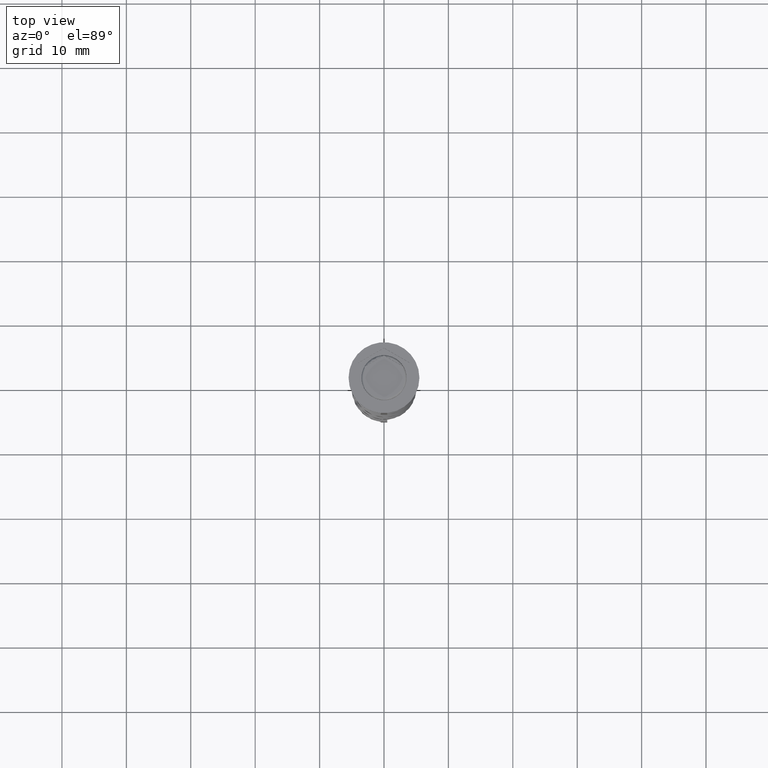
[diagram: clean part render]
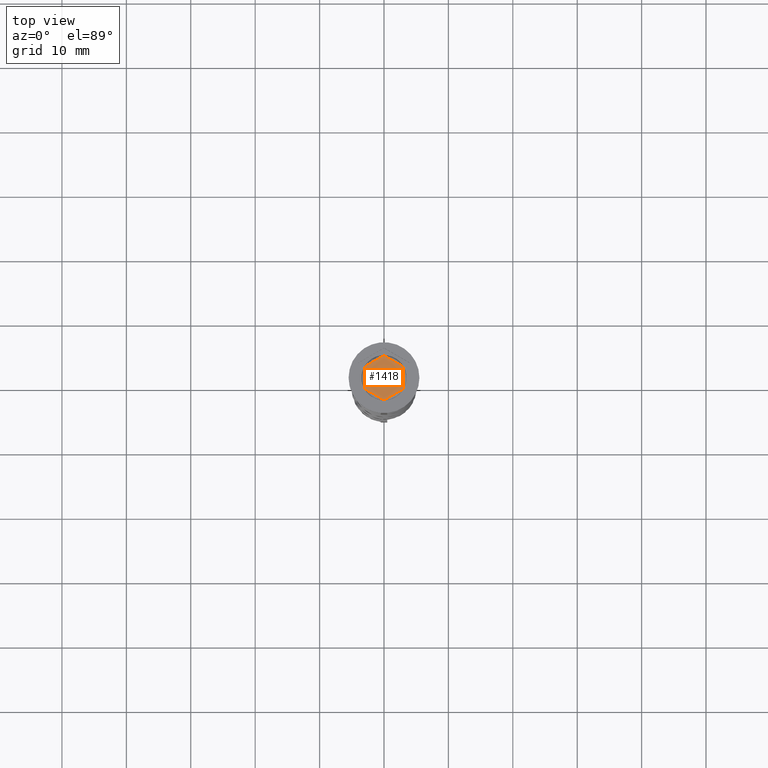
[diagram: same view with one face highlighted and labeled with its STEP entity id]
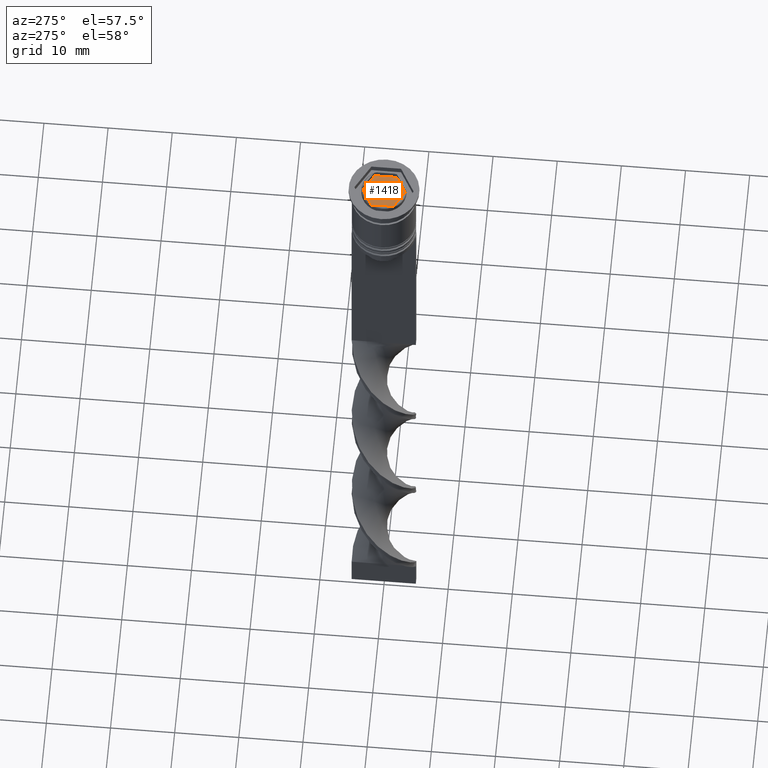
[diagram: same view with one face highlighted and labeled with its STEP entity id]
A machine part, top view. The second image highlights one B-rep face of the part: STEP entity #1418.
A second angle (auxiliary view) of the same face is appended — the face is thin or edge-on in the first view.
In plain terms, the highlighted planar face has unit normal (0, 0, 1).
Its self-contained STEP definition (entity closure, byte-faithful):
#138 = VECTOR ( 'NONE', #795, 999.9999999999998863 ) ;
#167 = LINE ( 'NONE', #2773, #2140 ) ;
#359 = CARTESIAN_POINT ( 'NONE',  ( -3.000000000000000000, 1.732050807568876971, -1.000000000000000888 ) ) ;
#446 = ORIENTED_EDGE ( 'NONE', *, *, #2046, .F. ) ;
#473 = VECTOR ( 'NONE', #2633, 1000.000000000000000 ) ;
#532 = VECTOR ( 'NONE', #552, 999.9999999999998863 ) ;
#551 = CARTESIAN_POINT ( 'NONE',  ( 3.000000000000000888, 1.732050807568877415, -1.000000000000000888 ) ) ;
#552 = DIRECTION ( 'NONE',  ( -0.8660254037844387076, 0.4999999999999999445, 0.000000000000000000 ) ) ;
#556 = VERTEX_POINT ( 'NONE', #1062 ) ;
#558 = CARTESIAN_POINT ( 'NONE',  ( -4.336808689942017736E-16, -3.464101615137753942, -1.000000000000000888 ) ) ;
#757 = EDGE_CURVE ( 'NONE', #801, #2146, #2721, .T. ) ;
#795 = DIRECTION ( 'NONE',  ( -0.8660254037844387076, -0.5000000000000001110, 0.000000000000000000 ) ) ;
#801 = VERTEX_POINT ( 'NONE', #3371 ) ;
#871 = VECTOR ( 'NONE', #1042, 999.9999999999998863 ) ;
#890 = VERTEX_POINT ( 'NONE', #2266 ) ;
#1020 = CARTESIAN_POINT ( 'NONE',  ( 0.000000000000000000, 3.464101615137754386, -1.000000000000000888 ) ) ;
#1042 = DIRECTION ( 'NONE',  ( 0.8660254037844387076, 0.4999999999999999445, -0.000000000000000000 ) ) ;
#1062 = CARTESIAN_POINT ( 'NONE',  ( 3.000000000000000888, 1.732050807568877193, -1.000000000000000888 ) ) ;
#1065 = ORIENTED_EDGE ( 'NONE', *, *, #1711, .F. ) ;
#1164 = LINE ( 'NONE', #1732, #532 ) ;
#1207 = ORIENTED_EDGE ( 'NONE', *, *, #1673, .F. ) ;
#1279 = VECTOR ( 'NONE', #3684, 1000.000000000000114 ) ;
#1315 = DIRECTION ( 'NONE',  ( 1.000000000000000000, 0.000000000000000000, -0.000000000000000000 ) ) ;
#1342 = DIRECTION ( 'NONE',  ( -5.007715329123864752E-16, -1.000000000000000000, 0.000000000000000000 ) ) ;
#1407 = LINE ( 'NONE', #551, #1279 ) ;
#1418 = ADVANCED_FACE ( 'NONE', ( #2444 ), #3587, .T. ) ;
#1595 = ORIENTED_EDGE ( 'NONE', *, *, #757, .F. ) ;
#1601 = CARTESIAN_POINT ( 'NONE',  ( 0.000000000000000000, 0.000000000000000000, -1.000000000000000000 ) ) ;
#1602 = VERTEX_POINT ( 'NONE', #1629 ) ;
#1629 = CARTESIAN_POINT ( 'NONE',  ( -3.000000000000000000, -1.732050807568876527, -1.000000000000000888 ) ) ;
#1673 = EDGE_CURVE ( 'NONE', #556, #890, #167, .T. ) ;
#1711 = EDGE_CURVE ( 'NONE', #2728, #1602, #1164, .T. ) ;
#1732 = CARTESIAN_POINT ( 'NONE',  ( -3.000000000000000000, -1.732050807568876971, -1.000000000000000888 ) ) ;
#1786 = LINE ( 'NONE', #359, #473 ) ;
#2046 = EDGE_CURVE ( 'NONE', #1602, #801, #1786, .T. ) ;
#2136 = AXIS2_PLACEMENT_3D ( 'NONE', #1601, #2729, #1315 ) ;
#2140 = VECTOR ( 'NONE', #1342, 1000.000000000000000 ) ;
#2146 = VERTEX_POINT ( 'NONE', #1020 ) ;
#2266 = CARTESIAN_POINT ( 'NONE',  ( 2.999999999999999112, -1.732050807568877193, -1.000000000000000888 ) ) ;
#2444 = FACE_OUTER_BOUND ( 'NONE', #3244, .T. ) ;
#2458 = EDGE_CURVE ( 'NONE', #2146, #556, #1407, .T. ) ;
#2506 = CARTESIAN_POINT ( 'NONE',  ( -2.168404344971008868E-16, -3.464101615137754386, -1.000000000000000888 ) ) ;
#2633 = DIRECTION ( 'NONE',  ( 0.000000000000000000, 1.000000000000000000, 0.000000000000000000 ) ) ;
#2721 = LINE ( 'NONE', #3597, #871 ) ;
#2728 = VERTEX_POINT ( 'NONE', #558 ) ;
#2729 = DIRECTION ( 'NONE',  ( 0.000000000000000000, 0.000000000000000000, 1.000000000000000000 ) ) ;
#2761 = ORIENTED_EDGE ( 'NONE', *, *, #3040, .F. ) ;
#2773 = CARTESIAN_POINT ( 'NONE',  ( 2.999999999999999112, -1.732050807568877637, -1.000000000000000888 ) ) ;
#3040 = EDGE_CURVE ( 'NONE', #890, #2728, #3354, .T. ) ;
#3244 = EDGE_LOOP ( 'NONE', ( #3427, #1595, #446, #1065, #2761, #1207 ) ) ;
#3354 = LINE ( 'NONE', #2506, #138 ) ;
#3371 = CARTESIAN_POINT ( 'NONE',  ( -3.000000000000000000, 1.732050807568876971, -1.000000000000000888 ) ) ;
#3427 = ORIENTED_EDGE ( 'NONE', *, *, #2458, .F. ) ;
#3587 = PLANE ( 'NONE',  #2136 ) ;
#3597 = CARTESIAN_POINT ( 'NONE',  ( 0.000000000000000000, 3.464101615137754386, -1.000000000000000888 ) ) ;
#3684 = DIRECTION ( 'NONE',  ( 0.8660254037844387076, -0.4999999999999997780, 0.000000000000000000 ) ) ;